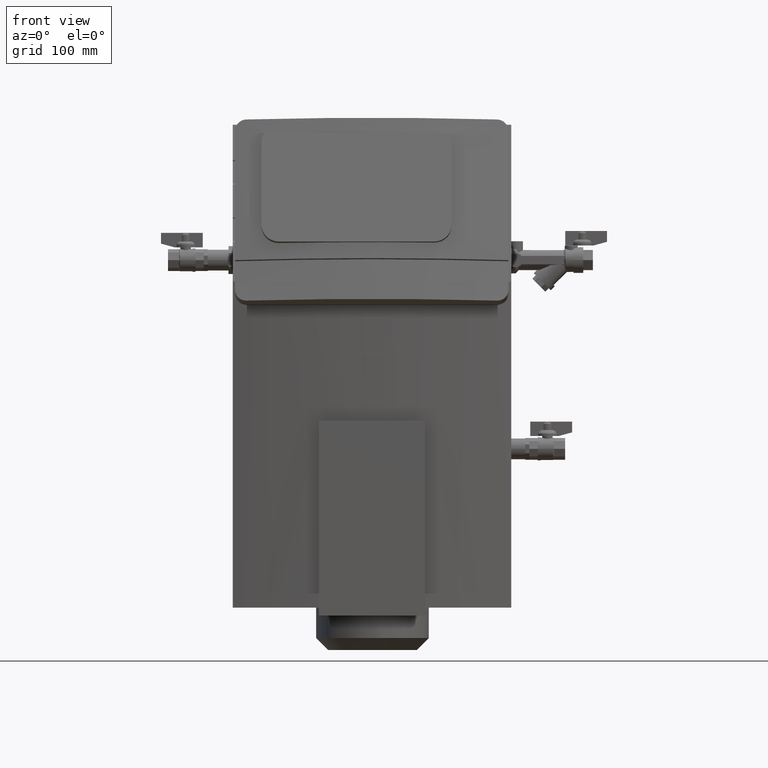
[diagram: clean part render]
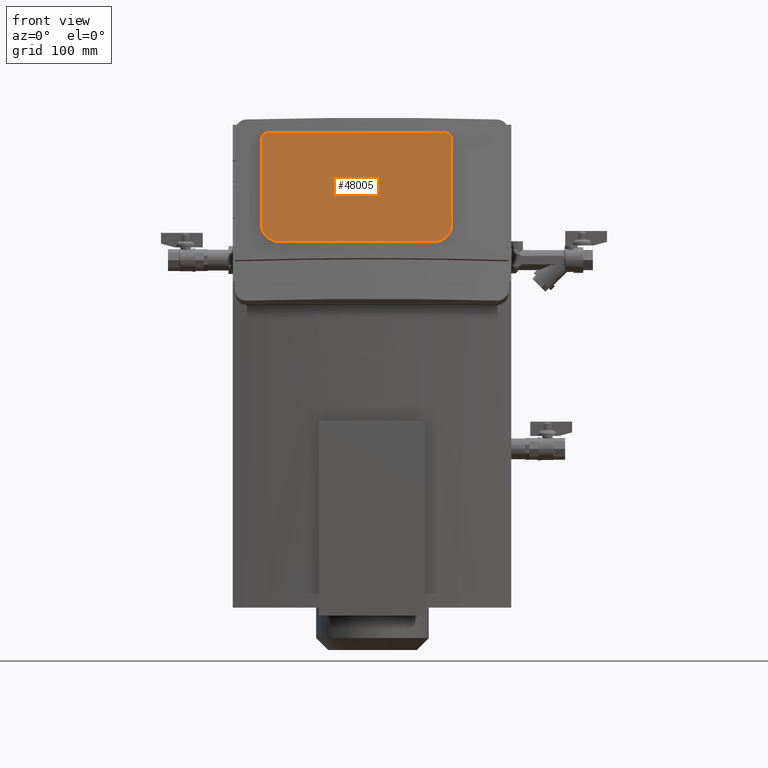
[diagram: same view with one face highlighted and labeled with its STEP entity id]
A machine part, front view. The second image highlights one B-rep face of the part: STEP entity #48005.
In plain terms, the highlighted face is a freeform B-spline surface patch.
Its self-contained STEP definition (entity closure, byte-faithful):
#47890=CARTESIAN_POINT('',(-115.63061828037492,-270.59082218033006,-135.10950880000735));
#47891=VERTEX_POINT('',#47890);
#47898=CARTESIAN_POINT('',(-137.13061828037496,-265.02621271062651,-114.3421035347922));
#47899=VERTEX_POINT('',#47898);
#47900=CARTESIAN_POINT('',(-115.63061828037499,-265.02621271062628,-114.34210353479239));
#47901=DIRECTION('',(-1.942890E-015,0.965925826289073,-0.258819045102503));
#47902=DIRECTION('',(-0.707106781186548,-0.183012701892208,-0.683012701892222));
#47903=AXIS2_PLACEMENT_3D('',#47900,#47901,#47902);
#47904=CIRCLE('',#47903,21.500000000000004);
#47905=EDGE_CURVE('',#47891,#47899,#47904,.T.);
#47922=CARTESIAN_POINT('',(-137.13061828037527,-236.5561177493509,-8.090262642993963));
#47923=VERTEX_POINT('',#47922);
#47924=CARTESIAN_POINT('',(-137.13061828037496,-265.02621271062657,-114.34210353479219));
#47925=DIRECTION('',(-3.100550E-015,0.258819045102505,0.965925826289073));
#47926=VECTOR('',#47925,110.00000000000027);
#47927=LINE('',#47924,#47926);
#47928=EDGE_CURVE('',#47899,#47923,#47927,.T.);
#47947=CARTESIAN_POINT('',(-137.13061828037533,-270.59082218033058,-135.10950880000806));
#47948=CARTESIAN_POINT('',(98.869381719624897,-270.59082218032944,-135.10950880000763));
#47949=CARTESIAN_POINT('',(-137.13061828037576,-234.35615586597947,0.120106880463766));
#47950=CARTESIAN_POINT('',(98.869381719624471,-234.35615586597834,0.120106880464192));
#47951=B_SPLINE_SURFACE_WITH_KNOTS('',1,1,((#47947,#47949),(#47948,#47950)),.UNSPECIFIED.,.F.,.F.,.U.,(2,2),(2,2),(0.0,236.00000000000023),(0.0,140.00000000000171),.UNSPECIFIED.);
#47952=ORIENTED_EDGE('',*,*,#47905,.F.);
#47953=CARTESIAN_POINT('',(77.369381719624556,-270.59082218032938,-135.10950880000692));
#47954=VERTEX_POINT('',#47953);
#47955=CARTESIAN_POINT('',(77.369381719624556,-270.59082218032916,-135.10950880000706));
#47956=DIRECTION('',(-1.0,0.0,0.0));
#47957=VECTOR('',#47956,192.99999999999946);
#47958=LINE('',#47955,#47957);
#47959=EDGE_CURVE('',#47954,#47891,#47958,.T.);
#47960=ORIENTED_EDGE('',*,*,#47959,.F.);
#47961=CARTESIAN_POINT('',(98.869381719624485,-265.02621271062537,-114.34210353479199));
#47962=VERTEX_POINT('',#47961);
#47963=CARTESIAN_POINT('',(77.369381719624485,-265.02621271062526,-114.34210353479207));
#47964=DIRECTION('',(-2.692291E-015,0.965925826289072,-0.258819045102506));
#47965=DIRECTION('',(0.707106781186549,-0.183012701892207,-0.683012701892221));
#47966=AXIS2_PLACEMENT_3D('',#47963,#47964,#47965);
#47967=CIRCLE('',#47966,21.500000000000004);
#47968=EDGE_CURVE('',#47962,#47954,#47967,.T.);
#47969=ORIENTED_EDGE('',*,*,#47968,.F.);
#47970=CARTESIAN_POINT('',(98.869381719624158,-236.55611774935005,-8.090262642993887));
#47971=VERTEX_POINT('',#47970);
#47972=CARTESIAN_POINT('',(98.869381719624158,-236.55611774934982,-8.090262642993935));
#47973=DIRECTION('',(2.971361E-015,-0.258819045102505,-0.965925826289073));
#47974=VECTOR('',#47973,110.00000000000007);
#47975=LINE('',#47972,#47974);
#47976=EDGE_CURVE('',#47971,#47962,#47975,.T.);
#47977=ORIENTED_EDGE('',*,*,#47976,.F.);
#47978=CARTESIAN_POINT('',(90.36938171962413,-234.35615586597834,0.120106880463407));
#47979=VERTEX_POINT('',#47978);
#47980=CARTESIAN_POINT('',(90.369381719624158,-236.55611774934982,-8.090262642993784));
#47981=DIRECTION('',(-5.440093E-015,0.965925826289072,-0.258819045102506));
#47982=DIRECTION('',(0.707106781186543,0.183012701892214,0.683012701892226));
#47983=AXIS2_PLACEMENT_3D('',#47980,#47981,#47982);
#47984=CIRCLE('',#47983,8.500000000000002);
#47985=EDGE_CURVE('',#47979,#47971,#47984,.T.);
#47986=ORIENTED_EDGE('',*,*,#47985,.F.);
#47987=CARTESIAN_POINT('',(-128.63061828037533,-234.35615586597959,0.120106880462913));
#47988=VERTEX_POINT('',#47987);
#47989=CARTESIAN_POINT('',(-128.63061828037533,-234.35615586597967,0.120106880462942));
#47990=DIRECTION('',(1.0,0.0,0.0));
#47991=VECTOR('',#47990,218.99999999999946);
#47992=LINE('',#47989,#47991);
#47993=EDGE_CURVE('',#47988,#47979,#47992,.T.);
#47994=ORIENTED_EDGE('',*,*,#47993,.F.);
#47995=CARTESIAN_POINT('',(-128.63061828037527,-236.55611774935096,-8.090262642994361));
#47996=DIRECTION('',(-6.245005E-016,0.965925826289072,-0.258819045102508));
#47997=DIRECTION('',(-0.707106781186543,0.183012701892211,0.683012701892226));
#47998=AXIS2_PLACEMENT_3D('',#47995,#47996,#47997);
#47999=CIRCLE('',#47998,8.500000000000002);
#48000=EDGE_CURVE('',#47923,#47988,#47999,.T.);
#48001=ORIENTED_EDGE('',*,*,#48000,.F.);
#48002=ORIENTED_EDGE('',*,*,#47928,.F.);
#48003=EDGE_LOOP('',(#47952,#47960,#47969,#47977,#47986,#47994,#48001,#48002));
#48004=FACE_OUTER_BOUND('',#48003,.T.);
#48005=ADVANCED_FACE('',(#48004),#47951,.T.);